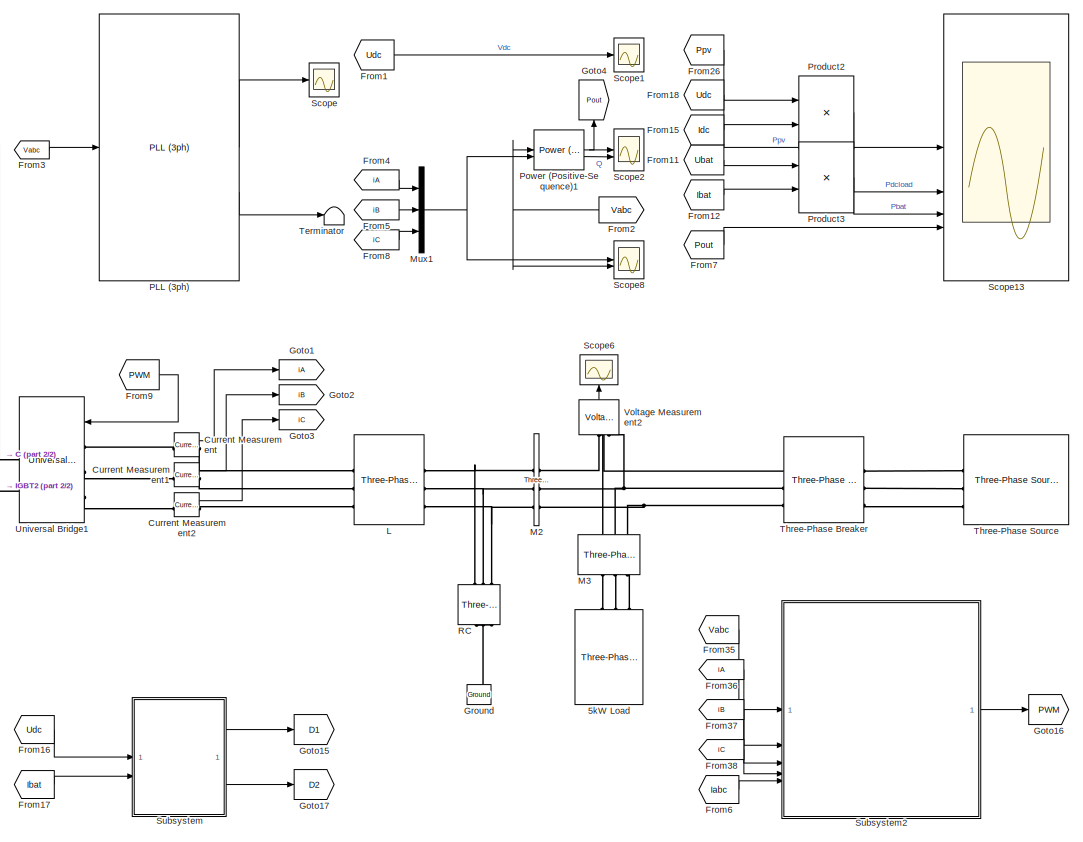
[diagram: root canvas - part 1/2, right side, full height]
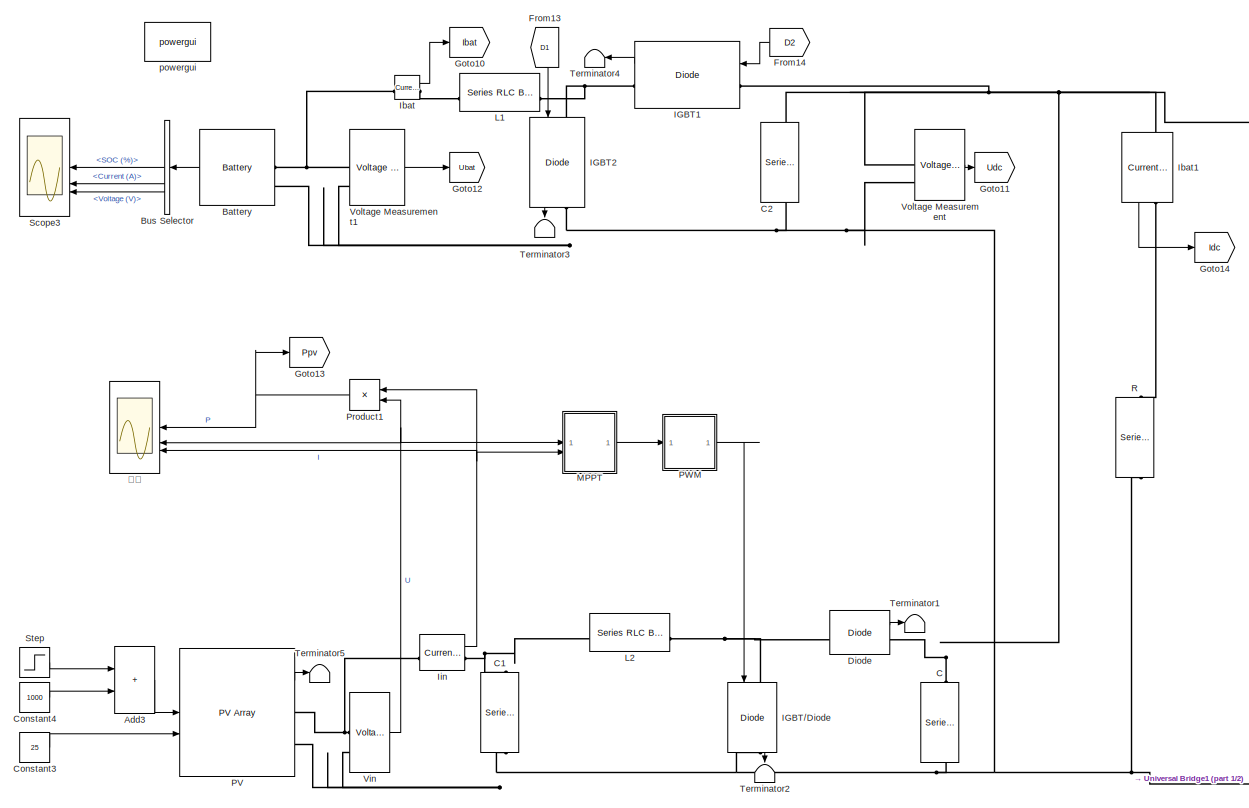
[diagram: root canvas - part 2/2, left side, full height]
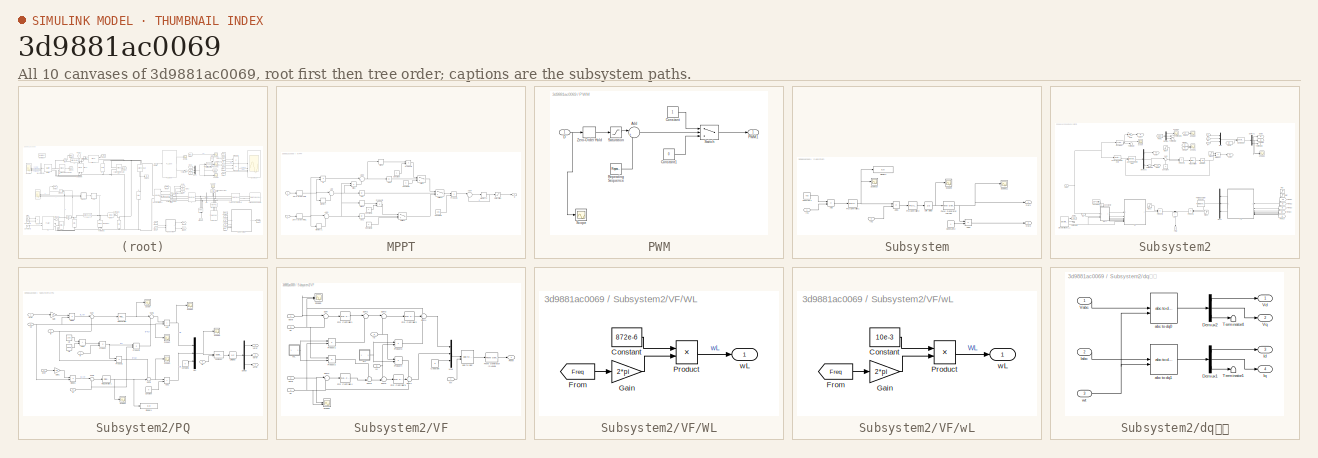
[diagram: thumbnail index - all 10 canvases of the model, root first then tree order]
MODEL slx_3d9881ac0069
KIND model
CONFIG AbsTol = auto
CONFIG EnableMultiTasking = on
CONFIG FixedStep = auto
CONFIG MaxStep = auto
CONFIG MinStep = auto
CONFIG RelTol = 1e-3
CONFIG SampleTimeConstraint = Unconstrained
CONFIG SolverName = VariableStepAuto
CONFIG StartTime = 0.0
CONFIG StopTime = 0.5
BLOCK [Reference] 5kW Load  REF=spsThreePhaseParallelRLCLoadLib/Three-Phase
Parallel RLC Load
  AttributesFormatString = \n
  NameLocation = right
  SourceBlock = spsThreePhaseParallelRLCLoadLib/Three-Phase\nParallel RLC Load
  SourceType = Three-Phase Parallel RLC Load
BLOCK [Sum] Add3
  IconShape = rectangular
BLOCK [Reference] Battery  REF=spsBatteryLib/Battery
  NameLocation = top
  SourceBlock = spsBatteryLib/Battery
  SourceType = Battery
BLOCK [BusSelector] Bus Selector
  OutputSignals = SOC (%),Current (A),Voltage (V)
BLOCK [Reference] C  REF=spsSeriesRLCBranchLib/Series RLC Branch
  NameLocation = left
  SourceBlock = spsSeriesRLCBranchLib/Series RLC Branch
  SourceType = Series RLC Branch
BLOCK [Reference] C1  REF=spsSeriesRLCBranchLib/Series RLC Branch
  NameLocation = left
  SourceBlock = spsSeriesRLCBranchLib/Series RLC Branch
  SourceType = Series RLC Branch
BLOCK [Reference] C2  REF=spsSeriesRLCBranchLib/Series RLC Branch
  NameLocation = left
  SourceBlock = spsSeriesRLCBranchLib/Series RLC Branch
  SourceType = Series RLC Branch
BLOCK [Constant] Constant3
  Value = 25
BLOCK [Constant] Constant4
  Value = 1000
BLOCK [Reference] Current Measurement  REF=spsCurrentMeasurementLib/Current Measurement
  SourceBlock = spsCurrentMeasurementLib/Current Measurement
  SourceType = Current Measurement
  UserDataPersistent = on
BLOCK [Reference] Current Measurement1  REF=spsCurrentMeasurementLib/Current Measurement
  SourceBlock = spsCurrentMeasurementLib/Current Measurement
  SourceType = Current Measurement
  UserDataPersistent = on
BLOCK [Reference] Current Measurement2  REF=spsCurrentMeasurementLib/Current Measurement
  SourceBlock = spsCurrentMeasurementLib/Current Measurement
  SourceType = Current Measurement
  UserDataPersistent = on
BLOCK [Reference] Diode  REF=spsDiodeLib/Diode
  SourceBlock = spsDiodeLib/Diode
  SourceType = Diode
BLOCK [From] From1
  GotoTag = Udc
BLOCK [From] From11
  GotoTag = Ubat
BLOCK [From] From12
  GotoTag = Ibat
BLOCK [From] From13
  GotoTag = D1
  NameLocation = left
BLOCK [From] From14
  GotoTag = D2
BLOCK [From] From15
  GotoTag = Idc
BLOCK [From] From16
  GotoTag = Udc
BLOCK [From] From17
  GotoTag = Ibat
BLOCK [From] From18
  GotoTag = Udc
BLOCK [From] From2
  GotoTag = Vabc
  NameLocation = top
  TagVisibility = global
BLOCK [From] From26
  GotoTag = Ppv
BLOCK [From] From3
  CloseFcn = tagdialog Close
  GotoTag = Vabc
  TagVisibility = global
BLOCK [From] From35
  GotoTag = Vabc
  TagVisibility = global
BLOCK [From] From36
  GotoTag = iA
BLOCK [From] From37
  GotoTag = iB
BLOCK [From] From38
  GotoTag = iC
BLOCK [From] From4
  GotoTag = iA
BLOCK [From] From5
  GotoTag = iB
BLOCK [From] From6
  GotoTag = Iabc
  TagVisibility = global
BLOCK [From] From7
  GotoTag = Pout
BLOCK [From] From8
  GotoTag = iC
BLOCK [From] From9
  GotoTag = PWM
BLOCK [Goto] Goto1
  GotoTag = iA
BLOCK [Goto] Goto10
  GotoTag = Ibat
BLOCK [Goto] Goto11
  GotoTag = Udc
BLOCK [Goto] Goto12
  GotoTag = Ubat
BLOCK [Goto] Goto13
  GotoTag = Ppv
BLOCK [Goto] Goto14
  GotoTag = Idc
BLOCK [Goto] Goto15
  GotoTag = D1
BLOCK [Goto] Goto16
  GotoTag = PWM
BLOCK [Goto] Goto17
  GotoTag = D2
BLOCK [Goto] Goto2
  GotoTag = iB
BLOCK [Goto] Goto3
  GotoTag = iC
BLOCK [Goto] Goto4
  GotoTag = Pout
  NameLocation = right
BLOCK [Reference] Ground  REF=spsGroundLib/Ground
  NameLocation = right
  SourceBlock = spsGroundLib/Ground
  SourceType = Ground
BLOCK [Reference] IGBT//Diode  REF=spsIGBTDiodeLib/IGBT//Diode
  NameLocation = left
  SourceBlock = spsIGBTDiodeLib/IGBT//Diode
  SourceType = IGBT/Diode
BLOCK [Reference] IGBT1  REF=spsIGBTDiodeLib/IGBT//Diode
  NameLocation = top
  SourceBlock = spsIGBTDiodeLib/IGBT//Diode
  SourceType = IGBT/Diode
BLOCK [Reference] IGBT2  REF=spsIGBTDiodeLib/IGBT//Diode
  NameLocation = left
  SourceBlock = spsIGBTDiodeLib/IGBT//Diode
  SourceType = IGBT/Diode
BLOCK [Reference] Ibat  REF=spsCurrentMeasurementLib/Current Measurement
  SourceBlock = spsCurrentMeasurementLib/Current Measurement
  SourceType = Current Measurement
  UserDataPersistent = on
BLOCK [Reference] Ibat1  REF=spsCurrentMeasurementLib/Current Measurement
  NameLocation = left
  SourceBlock = spsCurrentMeasurementLib/Current Measurement
  SourceType = Current Measurement
  UserDataPersistent = on
BLOCK [Reference] Iin  REF=spsCurrentMeasurementLib/Current Measurement
  SourceBlock = spsCurrentMeasurementLib/Current Measurement
  SourceType = Current Measurement
  UserDataPersistent = on
BLOCK [Reference] L  REF=spsThreePhaseSeriesRLCBranchLib/Three-Phase
Series RLC Branch
  AttributesFormatString = \n
  SourceBlock = spsThreePhaseSeriesRLCBranchLib/Three-Phase\nSeries RLC Branch
  SourceType = Three-Phase Series RLC Branch
BLOCK [Reference] L1  REF=spsSeriesRLCBranchLib/Series RLC Branch
  NameLocation = top
  SourceBlock = spsSeriesRLCBranchLib/Series RLC Branch
  SourceType = Series RLC Branch
BLOCK [Reference] L2  REF=spsSeriesRLCBranchLib/Series RLC Branch
  NameLocation = top
  SourceBlock = spsSeriesRLCBranchLib/Series RLC Branch
  SourceType = Series RLC Branch
BLOCK [Reference] M2  REF=spsThreePhaseVIMeasurementLib/Three-Phase
V-I Measurement
  SourceBlock = spsThreePhaseVIMeasurementLib/Three-Phase\nV-I Measurement
  SourceType = Three-Phase VI Measurement
BLOCK [Reference] M3  REF=spsThreePhaseVIMeasurementLib/Three-Phase
V-I Measurement
  NameLocation = left
  SourceBlock = spsThreePhaseVIMeasurementLib/Three-Phase\nV-I Measurement
  SourceType = Three-Phase VI Measurement
BLOCK [SubSystem] MPPT
BLOCK [Abs] MPPT/Abs
  SaturateOnIntegerOverflow = off
BLOCK [Abs] MPPT/Abs1
  SaturateOnIntegerOverflow = off
BLOCK [Abs] MPPT/Abs2
  SaturateOnIntegerOverflow = off
BLOCK [Sum] MPPT/Add
  Inputs = |+-
BLOCK [Sum] MPPT/Add1
  Inputs = |+-
BLOCK [Sum] MPPT/Add3
  Inputs = |++
BLOCK [Sum] MPPT/Add4
  Inputs = |-+
BLOCK [Constant] MPPT/Constant
BLOCK [Constant] MPPT/Constant1
BLOCK [Constant] MPPT/Constant2
  Value = 0
BLOCK [Constant] MPPT/Constant3
  Value = 0
BLOCK [Constant] MPPT/Constant4
  Value = 1e-5
BLOCK [Outport] MPPT/D
BLOCK [Inport] MPPT/I
  Port = 2
BLOCK [Product] MPPT/I//U
  Inputs = */
BLOCK [Memory] MPPT/Memory
  InheritSampleTime = on
BLOCK [Memory] MPPT/Memory1
  InheritSampleTime = on
BLOCK [Memory] MPPT/Memory2
  InheritSampleTime = on
  InitialCondition = 0.5
BLOCK [Product] MPPT/Product1
BLOCK [Product] MPPT/Product2
BLOCK [Product] MPPT/Product3
BLOCK [Saturate] MPPT/Saturation
  LowerLimit = 0
  UpperLimit = 1
BLOCK [Signum] MPPT/Sign1
BLOCK [Signum] MPPT/Sign2
BLOCK [Switch] MPPT/Switch
  Criteria = u2 > Threshold
  InputSameDT = off
  SaturateOnIntegerOverflow = off
  Threshold = 0.05
BLOCK [Switch] MPPT/Switch1
  Criteria = u2 > Threshold
  InputSameDT = off
  SaturateOnIntegerOverflow = off
  Threshold = 0.05
BLOCK [Switch] MPPT/Switch2
  Criteria = u2 > Threshold
  InputSameDT = off
  SaturateOnIntegerOverflow = off
  Threshold = 0.05
BLOCK [Inport] MPPT/U
BLOCK [ZeroOrderHold] MPPT/Zero-Order Hold
  SampleTime = 0.01
BLOCK [ZeroOrderHold] MPPT/Zero-Order Hold1
  SampleTime = 0.01
BLOCK [Product] MPPT/dI//dU
  Inputs = */
BLOCK [Mux] Mux1
  DisplayOption = bar
  Inputs = 3
BLOCK [Reference] PLL (3ph)  REF=spsPLL3phLib/PLL
(3ph)
  SourceBlock = spsPLL3phLib/PLL\n(3ph)
  SourceType = PLL (3ph)
BLOCK [Reference] PV   REF=spsPVArrayLib/PV Array
  SourceBlock = spsPVArrayLib/PV Array
  SourceType = PV array
BLOCK [SubSystem] PWM
BLOCK [Sum] PWM/Add
  Inputs = |+-
BLOCK [Constant] PWM/Constant
BLOCK [Constant] PWM/Constant1
  Value = 0
BLOCK [Inport] PWM/D
BLOCK [Outport] PWM/PWM1
BLOCK [Reference] PWM/Repeating Sequence  REF=simulink/Sources/Repeating
Sequence
  SourceBlock = simulink/Sources/Repeating\nSequence
  SourceType = Repeating table
BLOCK [Saturate] PWM/Saturation
  LowerLimit = 0
  UpperLimit = 1
BLOCK [Scope] PWM/Scope
  Floating = off
  NumInputPorts = 1
  ScopeSpecificationString = Simulink.scopes.TimeScopeBlockCfg('CurrentConfiguration', extmgr.ConfigurationSet(extmgr.Configuration('Core','General UI',true),extmgr.Configuration('Core','Source UI',true),extmgr.Configuration('Sources','WiredSimulink',true,'DataLoggingVariableName','ScopeData2'),extmgr.Configuration('Visuals','Time Domain',true,'SerializedDisplays',{struct('MinYLimReal','-0.0625','MaxYLimReal','0.5625','YLabel...<+1442ch>
BLOCK [Switch] PWM/Switch
  Criteria = u2 > Threshold
  InputSameDT = off
  SaturateOnIntegerOverflow = off
BLOCK [ZeroOrderHold] PWM/Zero-Order Hold
  SampleTime = 0.05
BLOCK [Reference] Power (Positive-Sequence)1  REF=spsPowerPositiveSequenceLib/Power
(Positive-Sequence)
  SourceBlock = spsPowerPositiveSequenceLib/Power\n(Positive-Sequence)
  SourceType = Power (Positive-Sequence)
BLOCK [Product] Product1
BLOCK [Product] Product2
BLOCK [Product] Product3
BLOCK [Reference] R  REF=spsSeriesRLCBranchLib/Series RLC Branch
  NameLocation = left
  SourceBlock = spsSeriesRLCBranchLib/Series RLC Branch
  SourceType = Series RLC Branch
BLOCK [Reference] RC  REF=spsThreePhaseSeriesRLCBranchLib/Three-Phase
Series RLC Branch
  AttributesFormatString = \n
  NameLocation = right
  SourceBlock = spsThreePhaseSeriesRLCBranchLib/Three-Phase\nSeries RLC Branch
  SourceType = Three-Phase Series RLC Branch
BLOCK [Scope] Scope
  Floating = off
  NumInputPorts = 1
  ScopeSpecificationString = Simulink.scopes.TimeScopeBlockCfg('CurrentConfiguration', extmgr.ConfigurationSet(extmgr.Configuration('Core','General UI',true,'FigureColor',[1 1 1]),extmgr.Configuration('Core','Source UI',true),extmgr.Configuration('Sources','WiredSimulink',true,'DataLoggingVariableName','ScopeData5'),extmgr.Configuration('Visuals','Time Domain',true,'SerializedDisplays',{struct('MinYLimReal','49.962','MaxYLimR...<+1583ch>
BLOCK [Scope] Scope1
  Floating = off
  NumInputPorts = 1
  ScopeSpecificationString = Simulink.scopes.TimeScopeBlockCfg('CurrentConfiguration', extmgr.ConfigurationSet(extmgr.Configuration('Core','General UI',true,'FigureColor',[1 1 1]),extmgr.Configuration('Core','Source UI',true),extmgr.Configuration('Sources','WiredSimulink',true,'DataLoggingVariableName','ScopeData4'),extmgr.Configuration('Visuals','Time Domain',true,'SerializedDisplays',{struct('MinYLimReal','-95.36959','MaxYL...<+2452ch>
BLOCK [Scope] Scope13
  Floating = off
  NumInputPorts = 4
  ScopeSpecificationString = Simulink.scopes.TimeScopeBlockCfg('CurrentConfiguration', extmgr.ConfigurationSet(extmgr.Configuration('Core','General UI',true,'FigureColor',[1 1 1]),extmgr.Configuration('Core','Source UI',true),extmgr.Configuration('Sources','WiredSimulink',true,'DataLoggingVariableName','ScopeData8'),extmgr.Configuration('Visuals','Time Domain',true,'SerializedDisplays',{struct('MinYLimReal','-5932.33099','Max...<+3987ch>
BLOCK [Scope] Scope2
  Floating = off
  NumInputPorts = 2
  ScopeSpecificationString = Simulink.scopes.TimeScopeBlockCfg('CurrentConfiguration', extmgr.ConfigurationSet(extmgr.Configuration('Core','General UI',true,'FigureColor',[1 1 1]),extmgr.Configuration('Core','Source UI',true),extmgr.Configuration('Sources','WiredSimulink',true,'DataLoggingVariableName','ScopeData1'),extmgr.Configuration('Visuals','Time Domain',true,'SerializedDisplays',{struct('MinYLimReal','49.962','MaxYLimR...<+1575ch>
BLOCK [Scope] Scope3
  Floating = off
  NumInputPorts = 3
  ScopeSpecificationString = Simulink.scopes.TimeScopeBlockCfg('CurrentConfiguration', extmgr.ConfigurationSet(extmgr.Configuration('Core','General UI',true,'FigureColor',[1 1 1]),extmgr.Configuration('Core','Source UI',true),extmgr.Configuration('Sources','WiredSimulink',true,'DataLoggingVariableName','ScopeData2'),extmgr.Configuration('Visuals','Time Domain',true,'SerializedDisplays',{struct('MinYLimReal','79.90049','MaxYLi...<+3070ch>
BLOCK [Scope] Scope6
  Floating = off
  NameLocation = right
  NumInputPorts = 1
  ScopeSpecificationString = Simulink.scopes.TimeScopeBlockCfg('CurrentConfiguration', extmgr.ConfigurationSet(extmgr.Configuration('Core','General UI',true),extmgr.Configuration('Core','Source UI',true),extmgr.Configuration('Sources','WiredSimulink',true,'DataLoggingVariableName','ScopeData7'),extmgr.Configuration('Visuals','Time Domain',true,'SerializedDisplays',{struct('MinYLimReal','-680.62591','MaxYLimReal','680.90978','...<+1535ch>
BLOCK [Scope] Scope8
  Floating = off
  NumInputPorts = 2
  ScopeSpecificationString = Simulink.scopes.TimeScopeBlockCfg('CurrentConfiguration', extmgr.ConfigurationSet(extmgr.Configuration('Core','General UI',true,'FigureColor',[1 1 1]),extmgr.Configuration('Core','Source UI',true),extmgr.Configuration('Sources','WiredSimulink',true,'DataLoggingVariableName','Iabc','DataLogging',true,'DataLoggingSaveFormat','StructureWithTime'),extmgr.Configuration('Visuals','Time Domain',true,'Ser...<+2233ch>
BLOCK [Step] Step
  After = 200
  SampleTime = 0
  Time = 0
BLOCK [SubSystem] Subsystem
BLOCK [Sum] Subsystem/Add
  IconShape = rectangular
  Inputs = +-
BLOCK [Sum] Subsystem/Add1
  IconShape = rectangular
  Inputs = +-
BLOCK [Sum] Subsystem/Add2
  IconShape = rectangular
  Inputs = -+
BLOCK [Constant] Subsystem/Constant1
  Value = 750
BLOCK [Constant] Subsystem/Constant2
BLOCK [Display] Subsystem/Display1
  Decimation = 1
BLOCK [Inport] Subsystem/In1
BLOCK [Inport] Subsystem/In2
  Port = 2
BLOCK [Outport] Subsystem/Out1
BLOCK [Outport] Subsystem/Out2
  Port = 2
BLOCK [Reference] Subsystem/PID Controller1  REF=slpidlib/PID Controller
  SourceBlock = slpidlib/PID Controller
  SourceType = PID 1dof
BLOCK [Reference] Subsystem/PID Controller2  REF=slpidlib/PID Controller
  SourceBlock = slpidlib/PID Controller
  SourceType = PID 1dof
BLOCK [Reference] Subsystem/PWM Generator (DC-DC)  REF=spsPWMGeneratorDCDCLib/PWM Generator
(DC-DC)
  SourceBlock = spsPWMGeneratorDCDCLib/PWM Generator\n(DC-DC)
  SourceType = PWM Generator (DC-DC)
BLOCK [Scope] Subsystem/Scope10
  Floating = off
  NumInputPorts = 1
  ScopeSpecificationString = Simulink.scopes.TimeScopeBlockCfg('CurrentConfiguration', extmgr.ConfigurationSet(extmgr.Configuration('Core','General UI',true),extmgr.Configuration('Core','Source UI',true),extmgr.Configuration('Sources','WiredSimulink',true,'DataLoggingVariableName','ScopeData3'),extmgr.Configuration('Visuals','Time Domain',true,'SerializedDisplays',{struct('MinYLimReal','-77650.06343','MaxYLimReal','10850.0071...<+1489ch>
BLOCK [Scope] Subsystem/Scope11
  Floating = off
  NumInputPorts = 1
  ScopeSpecificationString = Simulink.scopes.TimeScopeBlockCfg('CurrentConfiguration', extmgr.ConfigurationSet(extmgr.Configuration('Core','General UI',true),extmgr.Configuration('Core','Source UI',true),extmgr.Configuration('Sources','WiredSimulink',true,'DataLoggingVariableName','ScopeData4'),extmgr.Configuration('Visuals','Time Domain',true,'SerializedDisplays',{struct('MinYLimReal','-0.125','MaxYLimReal','1.125','YLabelRe...<+1464ch>
BLOCK [Scope] Subsystem/Scope9
  Floating = off
  NumInputPorts = 1
  ScopeSpecificationString = Simulink.scopes.TimeScopeBlockCfg('CurrentConfiguration', extmgr.ConfigurationSet(extmgr.Configuration('Core','General UI',true),extmgr.Configuration('Core','Source UI',true),extmgr.Configuration('Sources','WiredSimulink',true,'DataLoggingVariableName','ScopeData6'),extmgr.Configuration('Visuals','Time Domain',true,'SerializedDisplays',{struct('MinYLimReal','-0.11875','MaxYLimReal','1.06875','YLab...<+2220ch>
BLOCK [UnitDelay] Subsystem/Unit Delay
  HasFrameUpgradeWarning = on
  SampleTime = -1
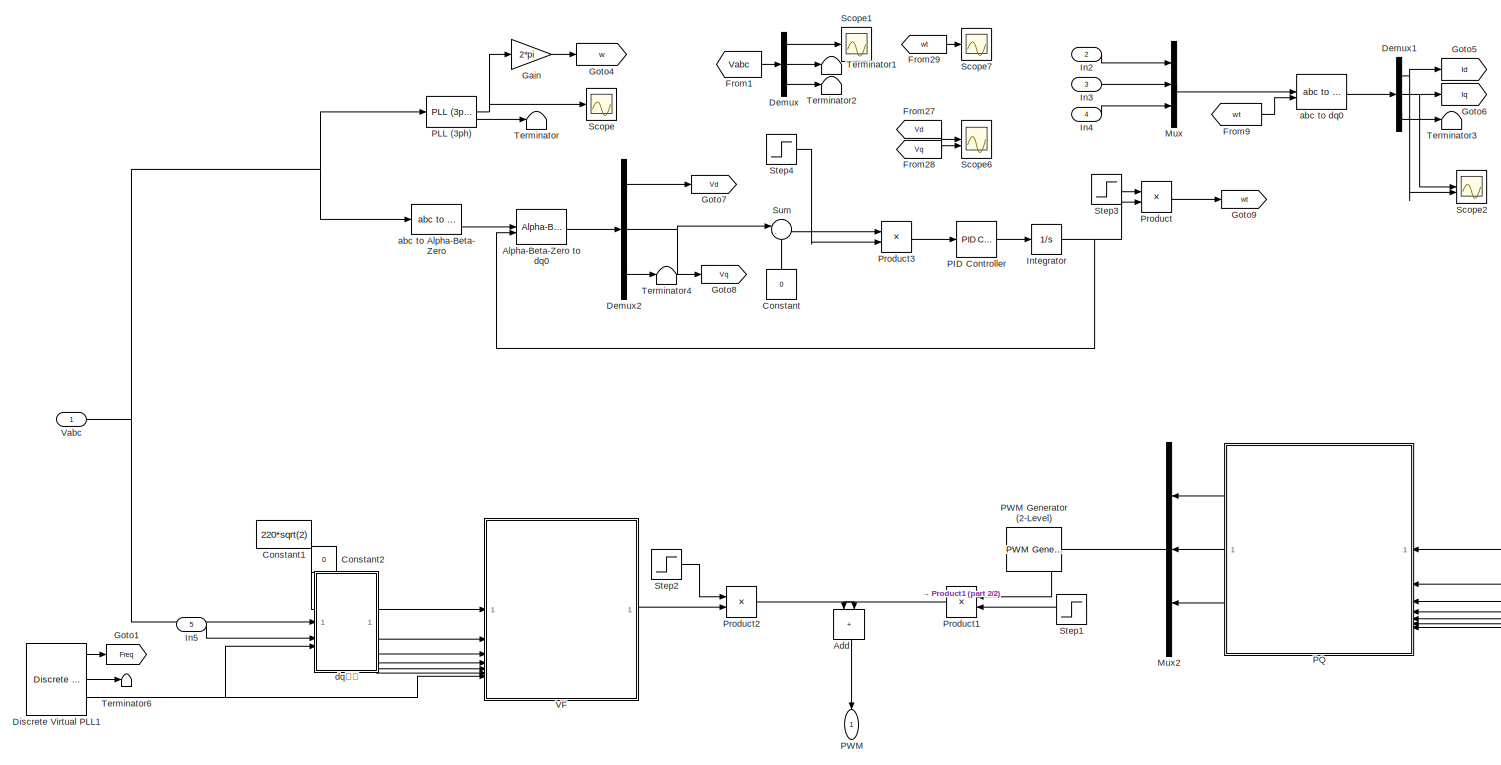
[diagram: Subsystem2 - part 1/2, most of the canvas]
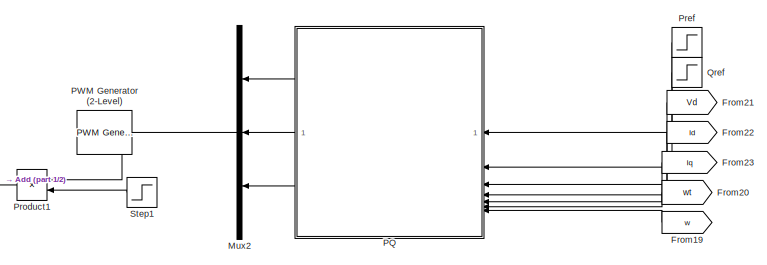
[diagram: Subsystem2 - part 2/2, bottom right region]
BLOCK [SubSystem] Subsystem2
BLOCK [Sum] Subsystem2/Add
  IconShape = rectangular
  NameLocation = left
BLOCK [Reference] Subsystem2/Alpha-Beta-Zero to dq0  REF=spsAlphaBetaZerotodq0Lib/Alpha-Beta-Zero
to dq0
  SourceBlock = spsAlphaBetaZerotodq0Lib/Alpha-Beta-Zero\nto dq0
  SourceType = Alpha-Beta-Zero to dq0 Transformation
BLOCK [Constant] Subsystem2/Constant
  NameLocation = right
  Value = 0
BLOCK [Constant] Subsystem2/Constant1
  Value = 220*sqrt(2)
BLOCK [Constant] Subsystem2/Constant2
  Value = 0
BLOCK [Demux] Subsystem2/Demux
  Outputs = 3
BLOCK [Demux] Subsystem2/Demux1
  Outputs = 3
BLOCK [Demux] Subsystem2/Demux2
  Outputs = 3
BLOCK [Reference] Subsystem2/Discrete Virtual PLL1  REF=powerlib_extras/Discrete 
Control Blocks/Discrete
Virtual PLL
  SourceBlock = powerlib_extras/Discrete \nControl Blocks/Discrete\nVirtual PLL
  SourceType = Discrete Virtual PLL
BLOCK [From] Subsystem2/From1
  GotoTag = Vabc
  TagVisibility = global
BLOCK [From] Subsystem2/From19
  GotoTag = w
  NameLocation = top
BLOCK [From] Subsystem2/From20
  GotoTag = wt
  NameLocation = top
BLOCK [From] Subsystem2/From21
  GotoTag = Vd
  NameLocation = top
BLOCK [From] Subsystem2/From22
  GotoTag = Id
  NameLocation = top
BLOCK [From] Subsystem2/From23
  GotoTag = Iq
  NameLocation = top
BLOCK [From] Subsystem2/From27
  GotoTag = Vd
BLOCK [From] Subsystem2/From28
  GotoTag = Vq
BLOCK [From] Subsystem2/From29
  GotoTag = wt
BLOCK [From] Subsystem2/From9
  GotoTag = wt
BLOCK [Gain] Subsystem2/Gain
  Gain = 2*pi
BLOCK [Goto] Subsystem2/Goto1
  GotoTag = Freq
  TagVisibility = global
BLOCK [Goto] Subsystem2/Goto4
  GotoTag = w
BLOCK [Goto] Subsystem2/Goto5
  GotoTag = Id
BLOCK [Goto] Subsystem2/Goto6
  GotoTag = Iq
BLOCK [Goto] Subsystem2/Goto7
  GotoTag = Vd
BLOCK [Goto] Subsystem2/Goto8
  GotoTag = Vq
BLOCK [Goto] Subsystem2/Goto9
  GotoTag = wt
BLOCK [Inport] Subsystem2/In2
  Port = 2
BLOCK [Inport] Subsystem2/In3
  Port = 3
BLOCK [Inport] Subsystem2/In4
  Port = 4
BLOCK [Inport] Subsystem2/In5
  Port = 5
BLOCK [Integrator] Subsystem2/Integrator
BLOCK [Mux] Subsystem2/Mux
  DisplayOption = bar
  Inputs = 3
BLOCK [Mux] Subsystem2/Mux2
  DisplayOption = bar
  Inputs = 3
  NameLocation = top
BLOCK [Reference] Subsystem2/PID Controller  REF=slpidlib/PID Controller
  SourceBlock = slpidlib/PID Controller
  SourceType = PID 1dof
BLOCK [Reference] Subsystem2/PLL (3ph)  REF=spsPLL3phLib/PLL
(3ph)
  SourceBlock = spsPLL3phLib/PLL\n(3ph)
  SourceType = PLL (3ph)
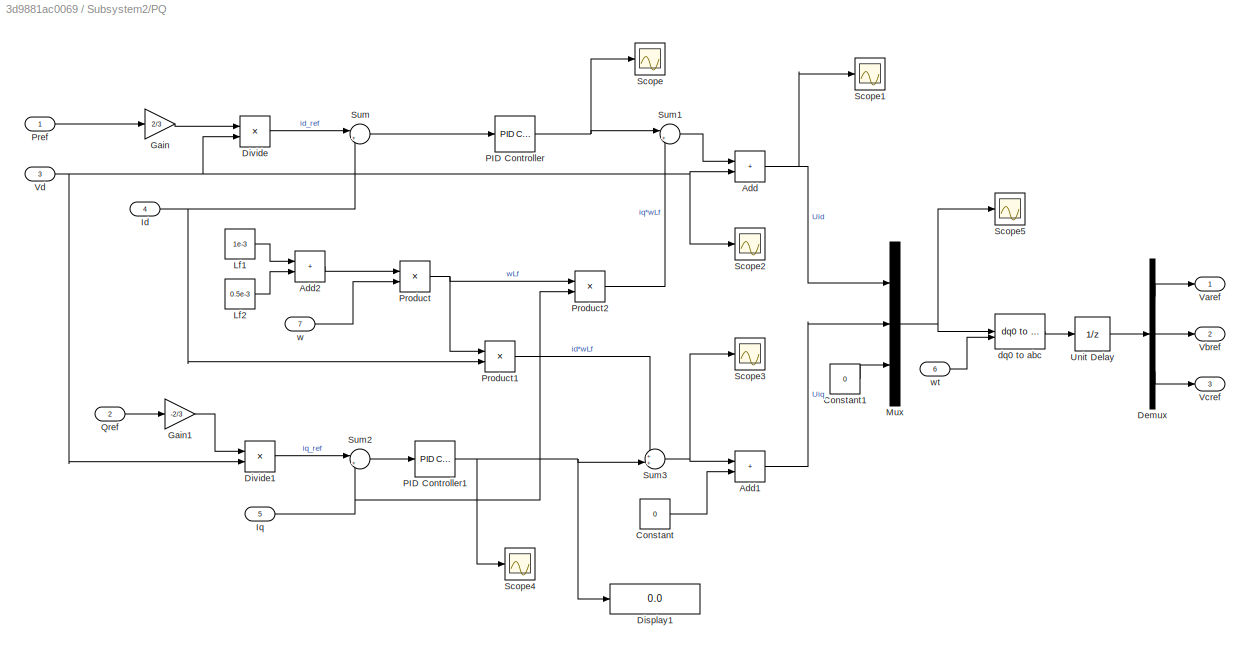
BLOCK [SubSystem] Subsystem2/PQ
  NameLocation = top
BLOCK [Sum] Subsystem2/PQ/Add
  IconShape = rectangular
BLOCK [Sum] Subsystem2/PQ/Add1
  IconShape = rectangular
BLOCK [Sum] Subsystem2/PQ/Add2
  IconShape = rectangular
BLOCK [Constant] Subsystem2/PQ/Constant
  Value = 0
BLOCK [Constant] Subsystem2/PQ/Constant1
  Value = 0
BLOCK [Demux] Subsystem2/PQ/Demux
  Outputs = 3
BLOCK [Display] Subsystem2/PQ/Display1
  Decimation = 1
BLOCK [Product] Subsystem2/PQ/Divide
  Inputs = */
BLOCK [Product] Subsystem2/PQ/Divide1
  Inputs = */
BLOCK [Gain] Subsystem2/PQ/Gain
  Gain = 2/3
BLOCK [Gain] Subsystem2/PQ/Gain1
  Gain = -2/3
BLOCK [Inport] Subsystem2/PQ/Id
  Port = 4
BLOCK [Inport] Subsystem2/PQ/Iq
  Port = 5
BLOCK [Constant] Subsystem2/PQ/Lf1
  Value = 1e-3
BLOCK [Constant] Subsystem2/PQ/Lf2
  Value = 0.5e-3
BLOCK [Mux] Subsystem2/PQ/Mux
  DisplayOption = bar
  Inputs = 3
BLOCK [Reference] Subsystem2/PQ/PID Controller  REF=slpidlib/PID Controller
  SourceBlock = slpidlib/PID Controller
  SourceType = PID 1dof
BLOCK [Reference] Subsystem2/PQ/PID Controller1  REF=slpidlib/PID Controller
  SourceBlock = slpidlib/PID Controller
  SourceType = PID 1dof
BLOCK [Inport] Subsystem2/PQ/Pref
BLOCK [Product] Subsystem2/PQ/Product
BLOCK [Product] Subsystem2/PQ/Product1
BLOCK [Product] Subsystem2/PQ/Product2
BLOCK [Inport] Subsystem2/PQ/Qref
  Port = 2
BLOCK [Scope] Subsystem2/PQ/Scope
  Floating = off
  NumInputPorts = 1
  ScopeSpecificationString = Simulink.scopes.TimeScopeBlockCfg('CurrentConfiguration', extmgr.ConfigurationSet(extmgr.Configuration('Core','General UI',true),extmgr.Configuration('Core','Source UI',true),extmgr.Configuration('Sources','WiredSimulink',true,'DataLoggingVariableName','ScopeData1'),extmgr.Configuration('Visuals','Time Domain',true,'SerializedDisplays',{struct('MinYLimReal','-481358155751787648.00000','MaxYLimReal...<+1532ch>
BLOCK [Scope] Subsystem2/PQ/Scope1
  Floating = off
  NumInputPorts = 1
  ScopeSpecificationString = Simulink.scopes.TimeScopeBlockCfg('CurrentConfiguration', extmgr.ConfigurationSet(extmgr.Configuration('Core','General UI',true),extmgr.Configuration('Core','Source UI',true),extmgr.Configuration('Sources','WiredSimulink',true,'DataLoggingVariableName','ScopeData2'),extmgr.Configuration('Visuals','Time Domain',true,'SerializedDisplays',{struct('MinYLimReal','-481358155751787648.00000','MaxYLimReal...<+1496ch>
BLOCK [Scope] Subsystem2/PQ/Scope2
  Floating = off
  NumInputPorts = 1
  ScopeSpecificationString = Simulink.scopes.TimeScopeBlockCfg('CurrentConfiguration', extmgr.ConfigurationSet(extmgr.Configuration('Core','General UI',true),extmgr.Configuration('Core','Source UI',true),extmgr.Configuration('Sources','WiredSimulink',true,'DataLoggingVariableName','ScopeData3'),extmgr.Configuration('Visuals','Time Domain',true),extmgr.Configuration('Tools','Plot Navigation',true),extmgr.Configuration('Tools',...<+40ch>
BLOCK [Scope] Subsystem2/PQ/Scope3
  Floating = off
  NumInputPorts = 1
  ScopeSpecificationString = Simulink.scopes.TimeScopeBlockCfg('CurrentConfiguration', extmgr.ConfigurationSet(extmgr.Configuration('Core','General UI',true),extmgr.Configuration('Core','Source UI',true),extmgr.Configuration('Sources','WiredSimulink',true,'DataLoggingVariableName','ScopeData4'),extmgr.Configuration('Visuals','Time Domain',true),extmgr.Configuration('Tools','Plot Navigation',true),extmgr.Configuration('Tools',...<+40ch>
BLOCK [Scope] Subsystem2/PQ/Scope4
  Floating = off
  NumInputPorts = 1
  ScopeSpecificationString = Simulink.scopes.TimeScopeBlockCfg('CurrentConfiguration', extmgr.ConfigurationSet(extmgr.Configuration('Core','General UI',true),extmgr.Configuration('Core','Source UI',true),extmgr.Configuration('Sources','WiredSimulink',true,'DataLoggingVariableName','ScopeData5'),extmgr.Configuration('Visuals','Time Domain',true),extmgr.Configuration('Tools','Plot Navigation',true),extmgr.Configuration('Tools',...<+40ch>
BLOCK [Scope] Subsystem2/PQ/Scope5
  Floating = off
  NumInputPorts = 1
  ScopeSpecificationString = Simulink.scopes.TimeScopeBlockCfg('CurrentConfiguration', extmgr.ConfigurationSet(extmgr.Configuration('Core','General UI',true),extmgr.Configuration('Core','Source UI',true),extmgr.Configuration('Sources','WiredSimulink',true,'DataLoggingVariableName','ScopeData6'),extmgr.Configuration('Visuals','Time Domain',true,'SerializedDisplays',{struct('MinYLimReal','-481358155751787648.00000','MaxYLimReal...<+1539ch>
BLOCK [Sum] Subsystem2/PQ/Sum
  Inputs = |+-
BLOCK [Sum] Subsystem2/PQ/Sum1
  Inputs = |+-
BLOCK [Sum] Subsystem2/PQ/Sum2
  Inputs = |+-
BLOCK [Sum] Subsystem2/PQ/Sum3
  Inputs = ++|
BLOCK [UnitDelay] Subsystem2/PQ/Unit Delay
  HasFrameUpgradeWarning = on
  SampleTime = -1
BLOCK [Outport] Subsystem2/PQ/Varef
BLOCK [Outport] Subsystem2/PQ/Vbref
  Port = 2
BLOCK [Outport] Subsystem2/PQ/Vcref
  Port = 3
BLOCK [Inport] Subsystem2/PQ/Vd
  Port = 3
BLOCK [Reference] Subsystem2/PQ/dq0 to abc  REF=spsdq0toabcLib/dq0 to abc
  SourceBlock = spsdq0toabcLib/dq0 to abc
  SourceType = dq0 to abc Transformation
BLOCK [Inport] Subsystem2/PQ/w
  Port = 7
BLOCK [Inport] Subsystem2/PQ/wt
  Port = 6
BLOCK [Outport] Subsystem2/PWM
  NameLocation = left
BLOCK [Reference] Subsystem2/PWM Generator (2-Level)  REF=spsPWMGenerator2LevelLib/PWM Generator
(2-Level)
  NameLocation = top
  SourceBlock = spsPWMGenerator2LevelLib/PWM Generator\n(2-Level)
  SourceType = PWM Generator (2-Level)
BLOCK [Step] Subsystem2/Pref
  After = 15e3
  Before = 15e3
  NameLocation = top
  SampleTime = 0
BLOCK [Product] Subsystem2/Product
BLOCK [Product] Subsystem2/Product1
  NameLocation = top
BLOCK [Product] Subsystem2/Product2
BLOCK [Product] Subsystem2/Product3
BLOCK [Step] Subsystem2/Qref
  After = 0
  NameLocation = top
  SampleTime = 0
BLOCK [Scope] Subsystem2/Scope
  Floating = off
  NumInputPorts = 1
  ScopeSpecificationString = Simulink.scopes.TimeScopeBlockCfg('CurrentConfiguration', extmgr.ConfigurationSet(extmgr.Configuration('Core','General UI',true),extmgr.Configuration('Core','Source UI',true),extmgr.Configuration('Sources','WiredSimulink',true,'DataLoggingVariableName','ScopeData13'),extmgr.Configuration('Visuals','Time Domain',true,'SerializedDisplays',{struct('MinYLimReal','49.87589','MaxYLimReal','50.06964','YL...<+1449ch>
BLOCK [Scope] Subsystem2/Scope1
  Floating = off
  NumInputPorts = 1
  ScopeSpecificationString = Simulink.scopes.TimeScopeBlockCfg('CurrentConfiguration', extmgr.ConfigurationSet(extmgr.Configuration('Core','General UI',true),extmgr.Configuration('Core','Source UI',true),extmgr.Configuration('Sources','WiredSimulink',true,'DataLoggingVariableName','ScopeData14','DataLoggingSaveFormat','StructureWithTime'),extmgr.Configuration('Visuals','Time Domain',true,'SerializedDisplays',{struct('MinYLimR...<+1613ch>
BLOCK [Scope] Subsystem2/Scope2
  Floating = off
  NumInputPorts = 2
  ScopeSpecificationString = Simulink.scopes.TimeScopeBlockCfg('CurrentConfiguration', extmgr.ConfigurationSet(extmgr.Configuration('Core','General UI',true),extmgr.Configuration('Core','Source UI',true),extmgr.Configuration('Sources','WiredSimulink',true,'DataLoggingVariableName','ScopeData7'),extmgr.Configuration('Visuals','Time Domain',true,'SerializedDisplays',{struct('MinYLimReal','-64.66144','MaxYLimReal','76.3032','YLa...<+1513ch>
BLOCK [Scope] Subsystem2/Scope6
  Floating = off
  NumInputPorts = 2
  ScopeSpecificationString = Simulink.scopes.TimeScopeBlockCfg('CurrentConfiguration', extmgr.ConfigurationSet(extmgr.Configuration('Core','General UI',true),extmgr.Configuration('Core','Source UI',true),extmgr.Configuration('Sources','WiredSimulink',true,'DataLoggingVariableName','ScopeData15','DataLoggingSaveFormat','StructureWithTime'),extmgr.Configuration('Visuals','Time Domain',true,'SerializedDisplays',{struct('MinYLimR...<+1649ch>
BLOCK [Scope] Subsystem2/Scope7
  Floating = off
  NumInputPorts = 1
  ScopeSpecificationString = Simulink.scopes.TimeScopeBlockCfg('CurrentConfiguration', extmgr.ConfigurationSet(extmgr.Configuration('Core','General UI',true),extmgr.Configuration('Core','Source UI',true),extmgr.Configuration('Sources','WiredSimulink',true,'DataLoggingVariableName','ScopeData16'),extmgr.Configuration('Visuals','Time Domain',true,'SerializedDisplays',{struct('MinYLimReal','-22.65468','MaxYLimReal','173.5479','Y...<+1558ch>
BLOCK [Step] Subsystem2/Step1
  After = 0
  Before = 1
  NameLocation = top
  SampleTime = 0
  Time = 0.5
BLOCK [Step] Subsystem2/Step2
  SampleTime = 0
  Time = 0.5
BLOCK [Step] Subsystem2/Step3
  After = 0
  Before = 1
  SampleTime = 0
  Time = 0.5
BLOCK [Step] Subsystem2/Step4
  After = 0
  Before = 1
  SampleTime = 0
  Time = 0.5
BLOCK [Sum] Subsystem2/Sum
  Inputs = |-+
BLOCK [Terminator] Subsystem2/Terminator
BLOCK [Terminator] Subsystem2/Terminator1
BLOCK [Terminator] Subsystem2/Terminator2
BLOCK [Terminator] Subsystem2/Terminator3
BLOCK [Terminator] Subsystem2/Terminator4
BLOCK [Terminator] Subsystem2/Terminator6
BLOCK [SubSystem] Subsystem2/VF
BLOCK [Constant] Subsystem2/VF/Constant
  Value = 0
BLOCK [Inport] Subsystem2/VF/Id
  Port = 5
BLOCK [Inport] Subsystem2/VF/Iq
  Port = 6
BLOCK [Mux] Subsystem2/VF/Mux
  DisplayOption = bar
  Inputs = 3
BLOCK [Reference] Subsystem2/VF/PID Controller1  REF=slpidlib/PID Controller
  SourceBlock = slpidlib/PID Controller
  SourceType = PID 1dof
BLOCK [Reference] Subsystem2/VF/PID Controller2  REF=slpidlib/PID Controller
  SourceBlock = slpidlib/PID Controller
  SourceType = PID 1dof
BLOCK [Reference] Subsystem2/VF/PID Controller3  REF=slpidlib/PID Controller
  SourceBlock = slpidlib/PID Controller
  SourceType = PID 1dof
BLOCK [Reference] Subsystem2/VF/PID Controller4  REF=slpidlib/PID Controller
  SourceBlock = slpidlib/PID Controller
  SourceType = PID 1dof
BLOCK [Outport] Subsystem2/VF/PWM
BLOCK [Reference] Subsystem2/VF/PWM Generator (2-Level)  REF=spsPWMGenerator2LevelLib/PWM Generator
(2-Level)
  SourceBlock = spsPWMGenerator2LevelLib/PWM Generator\n(2-Level)
  SourceType = PWM Generator (2-Level)
BLOCK [Product] Subsystem2/VF/Product1
BLOCK [Product] Subsystem2/VF/Product2
BLOCK [Product] Subsystem2/VF/Product3
BLOCK [Product] Subsystem2/VF/Product4
BLOCK [Scope] Subsystem2/VF/Scope5
  Floating = off
  NumInputPorts = 2
  ScopeSpecificationString = Simulink.scopes.TimeScopeBlockCfg('CurrentConfiguration', extmgr.ConfigurationSet(extmgr.Configuration('Core','General UI',true),extmgr.Configuration('Core','Source UI',true),extmgr.Configuration('Sources','WiredSimulink',true,'DataLoggingVariableName','ScopeData1'),extmgr.Configuration('Visuals','Time Domain',true,'SerializedDisplays',{struct('MinYLimReal','274.17411','MaxYLimReal','332.3604','YL...<+1493ch>
BLOCK [Scope] Subsystem2/VF/Scope6
  Floating = off
  NumInputPorts = 2
  ScopeSpecificationString = Simulink.scopes.TimeScopeBlockCfg('CurrentConfiguration', extmgr.ConfigurationSet(extmgr.Configuration('Core','General UI',true),extmgr.Configuration('Core','Source UI',true),extmgr.Configuration('Sources','WiredSimulink',true,'DataLoggingVariableName','ScopeData2'),extmgr.Configuration('Visuals','Time Domain',true,'SerializedDisplays',{struct('MinYLimReal','-15.86535','MaxYLimReal','13.77861','YL...<+1489ch>
BLOCK [Sum] Subsystem2/VF/Sum
  Inputs = |+-
BLOCK [Sum] Subsystem2/VF/Sum1
  Inputs = |+-
BLOCK [Sum] Subsystem2/VF/Sum2
  Inputs = |+-
BLOCK [Sum] Subsystem2/VF/Sum3
  Inputs = |+-
BLOCK [Sum] Subsystem2/VF/Sum4
  Inputs = ++-
BLOCK [Sum] Subsystem2/VF/Sum5
  Inputs = ++|
BLOCK [Sum] Subsystem2/VF/Sum6
  Inputs = -+|
BLOCK [Sum] Subsystem2/VF/Sum7
  Inputs = +++
BLOCK [Inport] Subsystem2/VF/Vd
  Port = 3
BLOCK [Inport] Subsystem2/VF/Vdref
BLOCK [Inport] Subsystem2/VF/Vq
  Port = 4
BLOCK [Inport] Subsystem2/VF/Vqref
  Port = 2
BLOCK [SubSystem] Subsystem2/VF/WL
BLOCK [Constant] Subsystem2/VF/WL/Constant
  Value = 872e-6
BLOCK [From] Subsystem2/VF/WL/From
  GotoTag = Freq
  TagVisibility = global
BLOCK [Gain] Subsystem2/VF/WL/Gain
  Gain = 2*pi
BLOCK [Product] Subsystem2/VF/WL/Product
BLOCK [Outport] Subsystem2/VF/WL/wL
BLOCK [Reference] Subsystem2/VF/dq0 to abc  REF=spsdq0toabcLib/dq0 to abc
  SourceBlock = spsdq0toabcLib/dq0 to abc
  SourceType = dq0 to abc Transformation
BLOCK [SubSystem] Subsystem2/VF/wL
BLOCK [Constant] Subsystem2/VF/wL/Constant
  Value = 10e-3
BLOCK [From] Subsystem2/VF/wL/From
  GotoTag = Freq
  TagVisibility = global
BLOCK [Gain] Subsystem2/VF/wL/Gain
  Gain = 2*pi
BLOCK [Product] Subsystem2/VF/wL/Product
BLOCK [Outport] Subsystem2/VF/wL/wL
BLOCK [Inport] Subsystem2/VF/wt
  Port = 7
BLOCK [Inport] Subsystem2/Vabc
BLOCK [Reference] Subsystem2/abc to Alpha-Beta-Zero  REF=spsabctoAlphaBetaZeroLib/abc to
Alpha-Beta-Zero
  SourceBlock = spsabctoAlphaBetaZeroLib/abc to\nAlpha-Beta-Zero
  SourceType = abc to Alpha-Beta-Zero Transformation
BLOCK [Reference] Subsystem2/abc to dq0  REF=spsabctodq0Lib/abc to dq0
  SourceBlock = spsabctodq0Lib/abc to dq0
  SourceType = abc to dq0 Transformation
BLOCK [SubSystem] Subsystem2/dq变换
BLOCK [Demux] Subsystem2/dq变换/Demux1
  DisplayOption = none
  Outputs = 3
BLOCK [Demux] Subsystem2/dq变换/Demux2
  DisplayOption = none
  Outputs = 3
BLOCK [Inport] Subsystem2/dq变换/Iabc
  Port = 2
  PortDimensions = 3
BLOCK [Outport] Subsystem2/dq变换/Id
  Port = 3
BLOCK [Outport] Subsystem2/dq变换/Iq
  Port = 4
BLOCK [Terminator] Subsystem2/dq变换/Terminator1
BLOCK [Terminator] Subsystem2/dq变换/Terminator4
BLOCK [Inport] Subsystem2/dq变换/Vabc
  PortDimensions = 3
BLOCK [Outport] Subsystem2/dq变换/Vd
BLOCK [Outport] Subsystem2/dq变换/Vq
  Port = 2
BLOCK [Reference] Subsystem2/dq变换/abc to dq0  REF=spsabctodq0Lib/abc to dq0
  SourceBlock = spsabctodq0Lib/abc to dq0
  SourceType = abc to dq0 Transformation
BLOCK [Reference] Subsystem2/dq变换/abc to dq1  REF=spsabctodq0Lib/abc to dq0
  SourceBlock = spsabctodq0Lib/abc to dq0
  SourceType = abc to dq0 Transformation
BLOCK [Inport] Subsystem2/dq变换/wt
  Port = 3
  PortDimensions = 1
BLOCK [Terminator] Terminator
BLOCK [Terminator] Terminator1
  NameLocation = top
BLOCK [Terminator] Terminator2
  NameLocation = right
BLOCK [Terminator] Terminator3
  NameLocation = right
BLOCK [Terminator] Terminator4
BLOCK [Terminator] Terminator5
  NameLocation = top
BLOCK [Reference] Three-Phase Breaker  REF=spsThreePhaseBreakerLib/Three-Phase Breaker
  SourceBlock = spsThreePhaseBreakerLib/Three-Phase Breaker
  SourceType = Three-Phase Breaker
BLOCK [Reference] Three-Phase Source  REF=spsThreePhaseSourceLib/Three-Phase Source
  SourceBlock = spsThreePhaseSourceLib/Three-Phase Source
  SourceType = Three-Phase Source
BLOCK [Reference] Universal Bridge1  REF=spsUniversalBridgeLib/Universal Bridge
  NameLocation = top
  SourceBlock = spsUniversalBridgeLib/Universal Bridge
  SourceType = Universal Bridge
BLOCK [Reference] Vin  REF=spsVoltageMeasurementLib/Voltage Measurement
  SourceBlock = spsVoltageMeasurementLib/Voltage Measurement
  SourceType = Voltage Measurement
  UserDataPersistent = on
BLOCK [Reference] Voltage Measurement  REF=spsVoltageMeasurementLib/Voltage Measurement
  SourceBlock = spsVoltageMeasurementLib/Voltage Measurement
  SourceType = Voltage Measurement
  UserDataPersistent = on
BLOCK [Reference] Voltage Measurement1  REF=spsVoltageMeasurementLib/Voltage Measurement
  SourceBlock = spsVoltageMeasurementLib/Voltage Measurement
  SourceType = Voltage Measurement
  UserDataPersistent = on
BLOCK [Reference] Voltage Measurement2  REF=spsVoltageMeasurementLib/Voltage Measurement
  NameLocation = right
  SourceBlock = spsVoltageMeasurementLib/Voltage Measurement
  SourceType = Voltage Measurement
  UserDataPersistent = on
BLOCK [Reference] powergui  REF=spspowerguiLib/powergui
  Priority = 1
  SourceBlock = spspowerguiLib/powergui
  SourceType = PSB option menu block
BLOCK [Scope] 光伏
  Floating = off
  NumInputPorts = 3
  ScopeSpecificationString = Simulink.scopes.TimeScopeBlockCfg('CurrentConfiguration', extmgr.ConfigurationSet(extmgr.Configuration('Core','General UI',true,'FigureColor',[1 1 1]),extmgr.Configuration('Core','Source UI',true),extmgr.Configuration('Sources','WiredSimulink',true,'DataLoggingVariableName','ScopeData3'),extmgr.Configuration('Visuals','Time Domain',true,'SerializedDisplays',{struct('MinYLimReal','-5932.33099','Max...<+3077ch>
LINE Add3:1 -> PV :1
LINE Battery:1 -> Bus Selector:1
LINE Bus Selector:1 -> Scope3:1
LINE Bus Selector:2 -> Scope3:2
LINE Bus Selector:3 -> Scope3:3
LINE Constant3:1 -> PV :2
LINE Constant4:1 -> Add3:2
LINE Current Measurement1:1 -> Goto2:1
LINE Current Measurement2:1 -> Goto3:1
LINE Current Measurement:1 -> Goto1:1
LINE Diode:1 -> Terminator1:1
LINE From11:1 -> Product3:1
LINE From12:1 -> Product3:2
LINE From13:1 -> IGBT2:1
LINE From14:1 -> IGBT1:1
LINE From15:1 -> Product2:2
LINE From16:1 -> Subsystem:1
LINE From17:1 -> Subsystem:2
LINE From18:1 -> Product2:1
LINE From1:1 -> Scope1:1
LINE From26:1 -> Scope13:1
NET From2:1 -> Power (Positive-Sequence)1:1, Scope8:2
LINE From35:1 -> Subsystem2:1
LINE From36:1 -> Subsystem2:2
LINE From37:1 -> Subsystem2:3
LINE From38:1 -> Subsystem2:4
LINE From3:1 -> PLL (3ph):1
LINE From4:1 -> Mux1:1
LINE From5:1 -> Mux1:2
LINE From6:1 -> Subsystem2:5
LINE From7:1 -> Scope13:4
LINE From8:1 -> Mux1:3
LINE From9:1 -> Universal Bridge1:1
LINE IGBT//Diode:1 -> Terminator2:1
LINE IGBT1:1 -> Terminator4:1
LINE IGBT2:1 -> Terminator3:1
LINE Ibat1:1 -> Goto14:1
LINE Ibat:1 -> Goto10:1
NET Iin:1 -> MPPT:2, Product1:1, 光伏:3
LINE MPPT/Abs1:1 -> MPPT/Switch:2
LINE MPPT/Abs2:1 -> MPPT/Switch1:2
LINE MPPT/Abs:1 -> MPPT/Switch2:2
NET MPPT/Add1:1 -> MPPT/Abs2:1, MPPT/Sign1:1, MPPT/dI//dU:1
NET MPPT/Add3:1 -> MPPT/Abs1:1, MPPT/Sign2:1
LINE MPPT/Add4:1 -> MPPT/Memory2:1
NET MPPT/Add:1 -> MPPT/Abs:1, MPPT/dI//dU:2
LINE MPPT/Constant1:1 -> MPPT/Product3:2
LINE MPPT/Constant2:1 -> MPPT/Switch1:3
LINE MPPT/Constant3:1 -> MPPT/Switch:3
LINE MPPT/Constant4:1 -> MPPT/Product1:2
LINE MPPT/Constant:1 -> MPPT/Product2:2
LINE MPPT/I//U:1 -> MPPT/Add3:1
LINE MPPT/I:1 -> MPPT/Zero-Order Hold1:1
LINE MPPT/Memory1:1 -> MPPT/Add1:2
NET MPPT/Memory2:1 -> MPPT/Add4:2, MPPT/Saturation:1
LINE MPPT/Memory:1 -> MPPT/Add:2
LINE MPPT/Product1:1 -> MPPT/Add4:1
LINE MPPT/Product2:1 -> MPPT/Switch:1
LINE MPPT/Product3:1 -> MPPT/Switch1:1
LINE MPPT/Saturation:1 -> MPPT/D:1
LINE MPPT/Sign1:1 -> MPPT/Product3:1
LINE MPPT/Sign2:1 -> MPPT/Product2:1
LINE MPPT/Switch1:1 -> MPPT/Switch2:3
LINE MPPT/Switch2:1 -> MPPT/Product1:1
LINE MPPT/Switch:1 -> MPPT/Switch2:1
LINE MPPT/U:1 -> MPPT/Zero-Order Hold:1
NET MPPT/Zero-Order Hold1:1 -> MPPT/Add1:1, MPPT/I//U:1, MPPT/Memory1:1
NET MPPT/Zero-Order Hold:1 -> MPPT/Add:1, MPPT/I//U:2, MPPT/Memory:1
LINE MPPT/dI//dU:1 -> MPPT/Add3:2
LINE MPPT:1 -> PWM:1
NET Mux1:1 -> Power (Positive-Sequence)1:2, Scope8:1
LINE PLL (3ph):1 -> Scope:1
LINE PLL (3ph):2 -> Terminator:1
LINE PV :1 -> Terminator5:1
LINE PWM/Add:1 -> PWM/Switch:2
LINE PWM/Constant1:1 -> PWM/Switch:3
LINE PWM/Constant:1 -> PWM/Switch:1
NET PWM/D:1 -> PWM/Scope:1, PWM/Zero-Order Hold:1
LINE PWM/Repeating Sequence:1 -> PWM/Add:2
LINE PWM/Saturation:1 -> PWM/Add:1
LINE PWM/Switch:1 -> PWM/PWM1:1
LINE PWM/Zero-Order Hold:1 -> PWM/Saturation:1
LINE PWM:1 -> IGBT//Diode:1
NET Power (Positive-Sequence)1:1 -> Goto4:1, Scope2:1
LINE Power (Positive-Sequence)1:2 -> Scope2:2
NET Product1:1 -> Goto13:1, 光伏:1
LINE Product2:1 -> Scope13:2
LINE Product3:1 -> Scope13:3
LINE Step:1 -> Add3:1
LINE Subsystem/Add1:1 -> Subsystem/PID Controller2:1
LINE Subsystem/Add2:1 -> Subsystem/Out2:1
LINE Subsystem/Add:1 -> Subsystem/PID Controller1:1
LINE Subsystem/Constant1:1 -> Subsystem/Add:1
LINE Subsystem/Constant2:1 -> Subsystem/Add2:2
LINE Subsystem/In1:1 -> Subsystem/Add:2
LINE Subsystem/In2:1 -> Subsystem/Add1:2
NET Subsystem/PID Controller1:1 -> Subsystem/Add1:1, Subsystem/Display1:1, Subsystem/Scope10:1
LINE Subsystem/PID Controller2:1 -> Subsystem/Unit Delay:1
NET Subsystem/PWM Generator (DC-DC):1 -> Subsystem/Add2:1, Subsystem/Out1:1, Subsystem/Scope11:1
NET Subsystem/Unit Delay:1 -> Subsystem/PWM Generator (DC-DC):1, Subsystem/Scope9:1
LINE Subsystem2/Add:1 -> Subsystem2/PWM:1
LINE Subsystem2/Alpha-Beta-Zero to dq0:1 -> Subsystem2/Demux2:1
LINE Subsystem2/Constant1:1 -> Subsystem2/VF:1
LINE Subsystem2/Constant2:1 -> Subsystem2/VF:2
LINE Subsystem2/Constant:1 -> Subsystem2/Sum:2
NET Subsystem2/Demux1:1 -> Subsystem2/Goto5:1, Subsystem2/Scope2:2
NET Subsystem2/Demux1:2 -> Subsystem2/Goto6:1, Subsystem2/Scope2:1
LINE Subsystem2/Demux1:3 -> Subsystem2/Terminator3:1
LINE Subsystem2/Demux2:1 -> Subsystem2/Goto7:1
NET Subsystem2/Demux2:2 -> Subsystem2/Goto8:1, Subsystem2/Sum:1
LINE Subsystem2/Demux2:3 -> Subsystem2/Terminator4:1
LINE Subsystem2/Demux:1 -> Subsystem2/Scope1:1
LINE Subsystem2/Demux:2 -> Subsystem2/Terminator1:1
LINE Subsystem2/Demux:3 -> Subsystem2/Terminator2:1
LINE Subsystem2/Discrete Virtual PLL1:1 -> Subsystem2/Goto1:1
LINE Subsystem2/Discrete Virtual PLL1:2 -> Subsystem2/Terminator6:1
NET Subsystem2/Discrete Virtual PLL1:3 -> Subsystem2/VF:7, Subsystem2/dq变换:3
LINE Subsystem2/From19:1 -> Subsystem2/PQ:7
LINE Subsystem2/From1:1 -> Subsystem2/Demux:1
LINE Subsystem2/From20:1 -> Subsystem2/PQ:6
LINE Subsystem2/From21:1 -> Subsystem2/PQ:3
LINE Subsystem2/From22:1 -> Subsystem2/PQ:4
LINE Subsystem2/From23:1 -> Subsystem2/PQ:5
LINE Subsystem2/From27:1 -> Subsystem2/Scope6:1
LINE Subsystem2/From28:1 -> Subsystem2/Scope6:2
LINE Subsystem2/From29:1 -> Subsystem2/Scope7:1
LINE Subsystem2/From9:1 -> Subsystem2/abc to dq0:2
LINE Subsystem2/Gain:1 -> Subsystem2/Goto4:1
LINE Subsystem2/In2:1 -> Subsystem2/Mux:1
LINE Subsystem2/In3:1 -> Subsystem2/Mux:2
LINE Subsystem2/In4:1 -> Subsystem2/Mux:3
LINE Subsystem2/In5:1 -> Subsystem2/dq变换:2
NET Subsystem2/Integrator:1 -> Subsystem2/Alpha-Beta-Zero to dq0:2, Subsystem2/Product:2
LINE Subsystem2/Mux2:1 -> Subsystem2/PWM Generator (2-Level):1
LINE Subsystem2/Mux:1 -> Subsystem2/abc to dq0:1
LINE Subsystem2/PID Controller:1 -> Subsystem2/Integrator:1
NET Subsystem2/PLL (3ph):1 -> Subsystem2/Gain:1, Subsystem2/Scope:1
LINE Subsystem2/PLL (3ph):2 -> Subsystem2/Terminator:1
LINE Subsystem2/PQ/Add1:1 -> Subsystem2/PQ/Mux:2
LINE Subsystem2/PQ/Add2:1 -> Subsystem2/PQ/Product:1
NET Subsystem2/PQ/Add:1 -> Subsystem2/PQ/Mux:1, Subsystem2/PQ/Scope1:1
LINE Subsystem2/PQ/Constant1:1 -> Subsystem2/PQ/Mux:3
LINE Subsystem2/PQ/Constant:1 -> Subsystem2/PQ/Add1:2
LINE Subsystem2/PQ/Demux:1 -> Subsystem2/PQ/Varef:1
LINE Subsystem2/PQ/Demux:2 -> Subsystem2/PQ/Vbref:1
LINE Subsystem2/PQ/Demux:3 -> Subsystem2/PQ/Vcref:1
LINE Subsystem2/PQ/Divide1:1 -> Subsystem2/PQ/Sum2:1
LINE Subsystem2/PQ/Divide:1 -> Subsystem2/PQ/Sum:1
LINE Subsystem2/PQ/Gain1:1 -> Subsystem2/PQ/Divide1:1
LINE Subsystem2/PQ/Gain:1 -> Subsystem2/PQ/Divide:1
NET Subsystem2/PQ/Id:1 -> Subsystem2/PQ/Product1:2, Subsystem2/PQ/Sum:2
NET Subsystem2/PQ/Iq:1 -> Subsystem2/PQ/Product2:2, Subsystem2/PQ/Sum2:2
LINE Subsystem2/PQ/Lf1:1 -> Subsystem2/PQ/Add2:1
LINE Subsystem2/PQ/Lf2:1 -> Subsystem2/PQ/Add2:2
NET Subsystem2/PQ/Mux:1 -> Subsystem2/PQ/Scope5:1, Subsystem2/PQ/dq0 to abc:1
NET Subsystem2/PQ/PID Controller1:1 -> Subsystem2/PQ/Display1:1, Subsystem2/PQ/Scope4:1, Subsystem2/PQ/Sum3:2
NET Subsystem2/PQ/PID Controller:1 -> Subsystem2/PQ/Scope:1, Subsystem2/PQ/Sum1:1
LINE Subsystem2/PQ/Pref:1 -> Subsystem2/PQ/Gain:1
LINE Subsystem2/PQ/Product1:1 -> Subsystem2/PQ/Sum3:1
LINE Subsystem2/PQ/Product2:1 -> Subsystem2/PQ/Sum1:2
NET Subsystem2/PQ/Product:1 -> Subsystem2/PQ/Product1:1, Subsystem2/PQ/Product2:1
LINE Subsystem2/PQ/Qref:1 -> Subsystem2/PQ/Gain1:1
LINE Subsystem2/PQ/Sum1:1 -> Subsystem2/PQ/Add:1
LINE Subsystem2/PQ/Sum2:1 -> Subsystem2/PQ/PID Controller1:1
NET Subsystem2/PQ/Sum3:1 -> Subsystem2/PQ/Add1:1, Subsystem2/PQ/Scope3:1
LINE Subsystem2/PQ/Sum:1 -> Subsystem2/PQ/PID Controller:1
LINE Subsystem2/PQ/Unit Delay:1 -> Subsystem2/PQ/Demux:1
NET Subsystem2/PQ/Vd:1 -> Subsystem2/PQ/Add:2, Subsystem2/PQ/Divide1:2, Subsystem2/PQ/Divide:2, Subsystem2/PQ/Scope2:1
LINE Subsystem2/PQ/dq0 to abc:1 -> Subsystem2/PQ/Unit Delay:1
LINE Subsystem2/PQ/w:1 -> Subsystem2/PQ/Product:2
LINE Subsystem2/PQ/wt:1 -> Subsystem2/PQ/dq0 to abc:2
LINE Subsystem2/PQ:1 -> Subsystem2/Mux2:1
LINE Subsystem2/PQ:2 -> Subsystem2/Mux2:2
LINE Subsystem2/PQ:3 -> Subsystem2/Mux2:3
LINE Subsystem2/PWM Generator (2-Level):1 -> Subsystem2/Product1:1
LINE Subsystem2/Pref:1 -> Subsystem2/PQ:1
LINE Subsystem2/Product1:1 -> Subsystem2/Add:1
LINE Subsystem2/Product2:1 -> Subsystem2/Add:2
LINE Subsystem2/Product3:1 -> Subsystem2/PID Controller:1
LINE Subsystem2/Product:1 -> Subsystem2/Goto9:1
LINE Subsystem2/Qref:1 -> Subsystem2/PQ:2
LINE Subsystem2/Step1:1 -> Subsystem2/Product1:2
LINE Subsystem2/Step2:1 -> Subsystem2/Product2:1
LINE Subsystem2/Step3:1 -> Subsystem2/Product:1
LINE Subsystem2/Step4:1 -> Subsystem2/Product3:2
LINE Subsystem2/Sum:1 -> Subsystem2/Product3:1
LINE Subsystem2/VF/Constant:1 -> Subsystem2/VF/Mux:3
NET Subsystem2/VF/Id:1 -> Subsystem2/VF/Product4:1, Subsystem2/VF/Sum3:2
NET Subsystem2/VF/Iq:1 -> Subsystem2/VF/Product3:2, Subsystem2/VF/Sum6:1
LINE Subsystem2/VF/Mux:1 -> Subsystem2/VF/dq0 to abc:1
LINE Subsystem2/VF/PID Controller1:1 -> Subsystem2/VF/Sum1:1
LINE Subsystem2/VF/PID Controller2:1 -> Subsystem2/VF/Sum4:2
LINE Subsystem2/VF/PID Controller3:1 -> Subsystem2/VF/Sum7:2
LINE Subsystem2/VF/PID Controller4:1 -> Subsystem2/VF/Sum5:2
LINE Subsystem2/VF/PWM Generator (2-Level):1 -> Subsystem2/VF/PWM:1
LINE Subsystem2/VF/Product1:1 -> Subsystem2/VF/Sum1:2
LINE Subsystem2/VF/Product2:1 -> Subsystem2/VF/Sum5:1
LINE Subsystem2/VF/Product3:1 -> Subsystem2/VF/Sum4:3
LINE Subsystem2/VF/Product4:1 -> Subsystem2/VF/Sum7:1
LINE Subsystem2/VF/Sum1:1 -> Subsystem2/VF/Sum3:1
LINE Subsystem2/VF/Sum2:1 -> Subsystem2/VF/PID Controller4:1
LINE Subsystem2/VF/Sum3:1 -> Subsystem2/VF/PID Controller2:1
LINE Subsystem2/VF/Sum4:1 -> Subsystem2/VF/Mux:1
LINE Subsystem2/VF/Sum5:1 -> Subsystem2/VF/Sum6:2
LINE Subsystem2/VF/Sum6:1 -> Subsystem2/VF/PID Controller3:1
LINE Subsystem2/VF/Sum7:1 -> Subsystem2/VF/Mux:2
LINE Subsystem2/VF/Sum:1 -> Subsystem2/VF/PID Controller1:1
NET Subsystem2/VF/Vd:1 -> Subsystem2/VF/Product2:1, Subsystem2/VF/Scope5:2, Subsystem2/VF/Sum4:1, Subsystem2/VF/Sum:2
NET Subsystem2/VF/Vdref:1 -> Subsystem2/VF/Scope5:1, Subsystem2/VF/Sum:1
NET Subsystem2/VF/Vq:1 -> Subsystem2/VF/Product1:2, Subsystem2/VF/Scope6:2, Subsystem2/VF/Sum2:2, Subsystem2/VF/Sum7:3
NET Subsystem2/VF/Vqref:1 -> Subsystem2/VF/Scope6:1, Subsystem2/VF/Sum2:1
LINE Subsystem2/VF/WL/Constant:1 -> Subsystem2/VF/WL/Product:1
LINE Subsystem2/VF/WL/From:1 -> Subsystem2/VF/WL/Gain:1
LINE Subsystem2/VF/WL/Gain:1 -> Subsystem2/VF/WL/Product:2
LINE Subsystem2/VF/WL/Product:1 -> Subsystem2/VF/WL/wL:1
NET Subsystem2/VF/WL:1 -> Subsystem2/VF/Product1:1, Subsystem2/VF/Product2:2
LINE Subsystem2/VF/dq0 to abc:1 -> Subsystem2/VF/PWM Generator (2-Level):1
LINE Subsystem2/VF/wL/Constant:1 -> Subsystem2/VF/wL/Product:1
LINE Subsystem2/VF/wL/From:1 -> Subsystem2/VF/wL/Gain:1
LINE Subsystem2/VF/wL/Gain:1 -> Subsystem2/VF/wL/Product:2
LINE Subsystem2/VF/wL/Product:1 -> Subsystem2/VF/wL/wL:1
NET Subsystem2/VF/wL:1 -> Subsystem2/VF/Product3:1, Subsystem2/VF/Product4:2
LINE Subsystem2/VF/wt:1 -> Subsystem2/VF/dq0 to abc:2
LINE Subsystem2/VF:1 -> Subsystem2/Product2:2
NET Subsystem2/Vabc:1 -> Subsystem2/PLL (3ph):1, Subsystem2/abc to Alpha-Beta-Zero:1, Subsystem2/dq变换:1
LINE Subsystem2/abc to Alpha-Beta-Zero:1 -> Subsystem2/Alpha-Beta-Zero to dq0:1
LINE Subsystem2/abc to dq0:1 -> Subsystem2/Demux1:1
LINE Subsystem2/dq变换/Demux1:1 -> Subsystem2/dq变换/Id:1
LINE Subsystem2/dq变换/Demux1:2 -> Subsystem2/dq变换/Iq:1
LINE Subsystem2/dq变换/Demux1:3 -> Subsystem2/dq变换/Terminator1:1
LINE Subsystem2/dq变换/Demux2:1 -> Subsystem2/dq变换/Vd:1
LINE Subsystem2/dq变换/Demux2:2 -> Subsystem2/dq变换/Vq:1
LINE Subsystem2/dq变换/Demux2:3 -> Subsystem2/dq变换/Terminator4:1
LINE Subsystem2/dq变换/Iabc:1 -> Subsystem2/dq变换/abc to dq1:1
LINE Subsystem2/dq变换/Vabc:1 -> Subsystem2/dq变换/abc to dq0:1
LINE Subsystem2/dq变换/abc to dq0:1 -> Subsystem2/dq变换/Demux2:1
LINE Subsystem2/dq变换/abc to dq1:1 -> Subsystem2/dq变换/Demux1:1
NET Subsystem2/dq变换/wt:1 -> Subsystem2/dq变换/abc to dq0:2, Subsystem2/dq变换/abc to dq1:2
LINE Subsystem2/dq变换:1 -> Subsystem2/VF:3
LINE Subsystem2/dq变换:2 -> Subsystem2/VF:4
LINE Subsystem2/dq变换:3 -> Subsystem2/VF:5
LINE Subsystem2/dq变换:4 -> Subsystem2/VF:6
LINE Subsystem2:1 -> Goto16:1
LINE Subsystem:1 -> Goto15:1
LINE Subsystem:2 -> Goto17:1
NET Vin:1 -> MPPT:1, Product1:2, 光伏:2
LINE Voltage Measurement1:1 -> Goto12:1
LINE Voltage Measurement2:1 -> Scope6:1
LINE Voltage Measurement:1 -> Goto11:1
PLINE 5kW Load:LConn1 -- M3:RConn1
PLINE 5kW Load:LConn2 -- M3:RConn2
PLINE 5kW Load:LConn3 -- M3:RConn3
PNET net1: Battery:LConn1 -- Ibat:LConn1 -- Voltage Measurement1:LConn1
PNET net2: Battery:LConn2 -- C1:RConn1 -- C2:RConn1 -- C:RConn1 -- IGBT//Diode:RConn1 -- IGBT2:RConn1 -- PV :RConn2 -- R:RConn1 -- Universal Bridge1:RConn2 -- Vin:LConn2 -- Voltage Measurement1:LConn2 -- Voltage Measurement:LConn2
PNET net3: C1:LConn1 -- Iin:RConn1 -- L2:RConn1
PNET net4: C2:LConn1 -- C:LConn1 -- Diode:RConn1 -- IGBT1:LConn1 -- Ibat1:LConn1 -- Universal Bridge1:RConn1 -- Voltage Measurement:LConn1
PLINE Current Measurement1:LConn1 -- Universal Bridge1:LConn2
PLINE Current Measurement1:RConn1 -- L:LConn2
PLINE Current Measurement2:LConn1 -- Universal Bridge1:LConn3
PLINE Current Measurement2:RConn1 -- L:LConn3
PLINE Current Measurement:LConn1 -- Universal Bridge1:LConn1
PLINE Current Measurement:RConn1 -- L:LConn1
PNET net5: Diode:LConn1 -- IGBT//Diode:LConn1 -- L2:LConn1
PNET net6: Ground:LConn1 -- RC:RConn1 -- RC:RConn2 -- RC:RConn3
PNET net7: IGBT1:RConn1 -- IGBT2:LConn1 -- L1:LConn1
PLINE Ibat1:RConn1 -- R:LConn1
PLINE Ibat:RConn1 -- L1:RConn1
PNET net8: Iin:LConn1 -- PV :RConn1 -- Vin:LConn1
PNET net9: L:RConn1 -- M2:LConn1 -- RC:LConn1
PNET net10: L:RConn2 -- M2:LConn2 -- RC:LConn2
PNET net11: L:RConn3 -- M2:LConn3 -- RC:LConn3
PNET net12: M2:RConn1 -- M3:LConn1 -- Three-Phase Breaker:LConn1 -- Voltage Measurement2:LConn1
PNET net13: M2:RConn2 -- M3:LConn2 -- Three-Phase Breaker:LConn2 -- Voltage Measurement2:LConn2
PNET net14: M2:RConn3 -- M3:LConn3 -- Three-Phase Breaker:LConn3
PLINE Three-Phase Breaker:RConn1 -- Three-Phase Source:RConn1
PLINE Three-Phase Breaker:RConn2 -- Three-Phase Source:RConn2
PLINE Three-Phase Breaker:RConn3 -- Three-Phase Source:RConn3
note: NET lines group one-source signal fan-out (src -> all destinations, sorted); 1:1 wires keep LINE; PNET lines group multi-terminal physical nets as a canonical sorted terminal list (undirected conserving connections); 2-terminal nets keep the pairwise PLINE form
